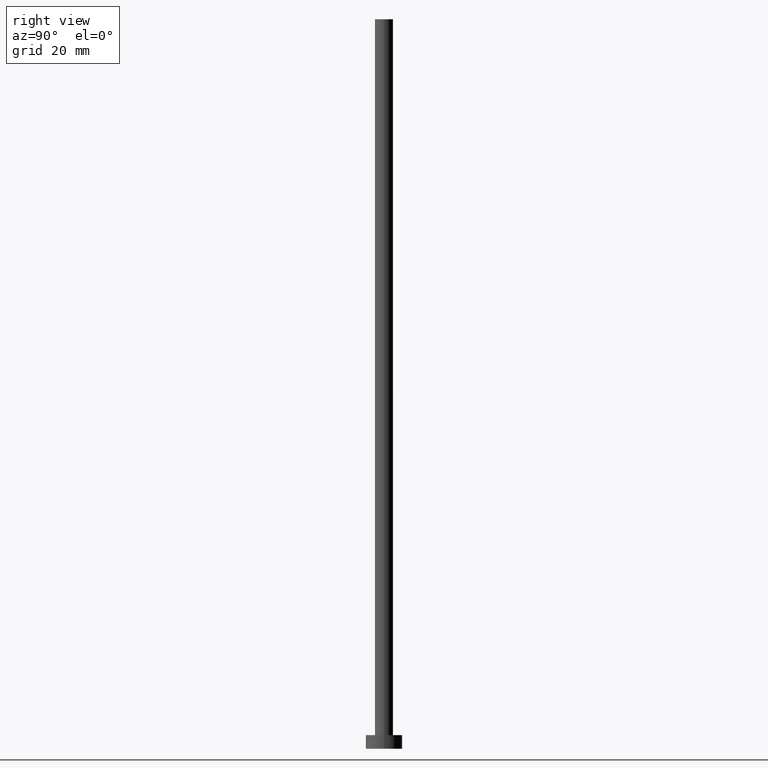
[diagram: clean part render]
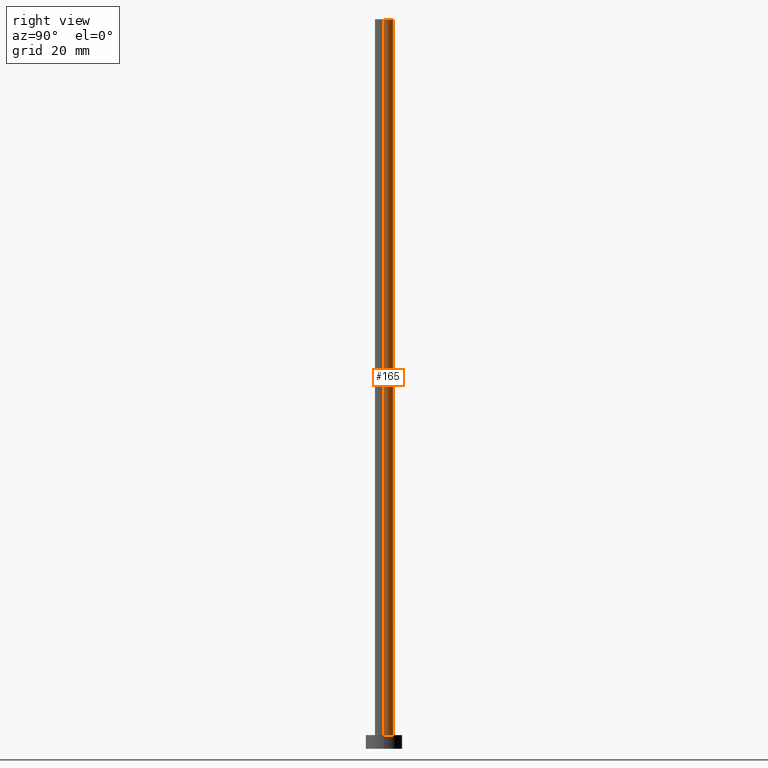
[diagram: same view with one face highlighted and labeled with its STEP entity id]
A machine part, right view. The second image highlights one B-rep face of the part: STEP entity #165.
In plain terms, the highlighted cylindrical surface (edge-blend (fillet) strip) has radius 2 mm, axis along (-0, -0, -1).
Its self-contained STEP definition (entity closure, byte-faithful):
#3 = DIRECTION ( 'NONE',  ( -0.000000000000000000, -0.000000000000000000, -1.000000000000000000 ) ) ;
#8 = DIRECTION ( 'NONE',  ( 1.000000000000000000, 0.000000000000000000, 0.000000000000000000 ) ) ;
#15 = DIRECTION ( 'NONE',  ( 1.000000000000000000, 0.000000000000000000, 0.000000000000000000 ) ) ;
#32 = AXIS2_PLACEMENT_3D ( 'NONE', #239, #177, #15 ) ;
#40 = DIRECTION ( 'NONE',  ( -0.000000000000000000, -0.000000000000000000, -1.000000000000000000 ) ) ;
#45 = CARTESIAN_POINT ( 'NONE',  ( 2.000000000000000000, 2.449293598294706414E-16, 160.0000000000000000 ) ) ;
#59 = DIRECTION ( 'NONE',  ( -0.000000000000000000, -0.000000000000000000, -1.000000000000000000 ) ) ;
#70 = EDGE_CURVE ( 'NONE', #230, #92, #231, .T. ) ;
#81 = CYLINDRICAL_SURFACE ( 'NONE', #89, 2.000000000000000000 ) ;
#84 = EDGE_CURVE ( 'NONE', #215, #88, #242, .T. ) ;
#86 = CARTESIAN_POINT ( 'NONE',  ( -2.000000000000000000, 0.000000000000000000, 160.0000000000000000 ) ) ;
#88 = VERTEX_POINT ( 'NONE', #86 ) ;
#89 = AXIS2_PLACEMENT_3D ( 'NONE', #151, #59, #93 ) ;
#92 = VERTEX_POINT ( 'NONE', #166 ) ;
#93 = DIRECTION ( 'NONE',  ( -1.000000000000000000, 0.000000000000000000, 0.000000000000000000 ) ) ;
#106 = CARTESIAN_POINT ( 'NONE',  ( 2.000000000000000000, 2.449293598294706414E-16, 160.0000000000000000 ) ) ;
#127 = ORIENTED_EDGE ( 'NONE', *, *, #139, .T. ) ;
#128 = CARTESIAN_POINT ( 'NONE',  ( -2.000000000000000000, 0.000000000000000000, 160.0000000000000000 ) ) ;
#139 = EDGE_CURVE ( 'NONE', #215, #230, #194, .T. ) ;
#140 = ORIENTED_EDGE ( 'NONE', *, *, #70, .T. ) ;
#141 = AXIS2_PLACEMENT_3D ( 'NONE', #197, #217, #8 ) ;
#145 = EDGE_CURVE ( 'NONE', #88, #92, #156, .T. ) ;
#151 = CARTESIAN_POINT ( 'NONE',  ( 0.000000000000000000, 0.000000000000000000, 160.0000000000000000 ) ) ;
#156 = LINE ( 'NONE', #128, #175 ) ;
#165 = ADVANCED_FACE ( 'NONE', ( #174 ), #81, .T. ) ;
#166 = CARTESIAN_POINT ( 'NONE',  ( -2.000000000000000000, 0.000000000000000000, 3.000000000000000000 ) ) ;
#174 = FACE_OUTER_BOUND ( 'NONE', #189, .T. ) ;
#175 = VECTOR ( 'NONE', #3, 1000.000000000000000 ) ;
#177 = DIRECTION ( 'NONE',  ( 0.000000000000000000, 0.000000000000000000, 1.000000000000000000 ) ) ;
#189 = EDGE_LOOP ( 'NONE', ( #227, #127, #140, #191 ) ) ;
#190 = VECTOR ( 'NONE', #40, 1000.000000000000000 ) ;
#191 = ORIENTED_EDGE ( 'NONE', *, *, #145, .F. ) ;
#194 = LINE ( 'NONE', #106, #190 ) ;
#197 = CARTESIAN_POINT ( 'NONE',  ( 0.000000000000000000, 0.000000000000000000, 3.000000000000000000 ) ) ;
#215 = VERTEX_POINT ( 'NONE', #45 ) ;
#217 = DIRECTION ( 'NONE',  ( 0.000000000000000000, 0.000000000000000000, 1.000000000000000000 ) ) ;
#227 = ORIENTED_EDGE ( 'NONE', *, *, #84, .F. ) ;
#230 = VERTEX_POINT ( 'NONE', #241 ) ;
#231 = CIRCLE ( 'NONE', #141, 2.000000000000000000 ) ;
#239 = CARTESIAN_POINT ( 'NONE',  ( 0.000000000000000000, 0.000000000000000000, 160.0000000000000000 ) ) ;
#241 = CARTESIAN_POINT ( 'NONE',  ( 2.000000000000000000, 2.449293598294706414E-16, 3.000000000000000000 ) ) ;
#242 = CIRCLE ( 'NONE', #32, 2.000000000000000000 ) ;